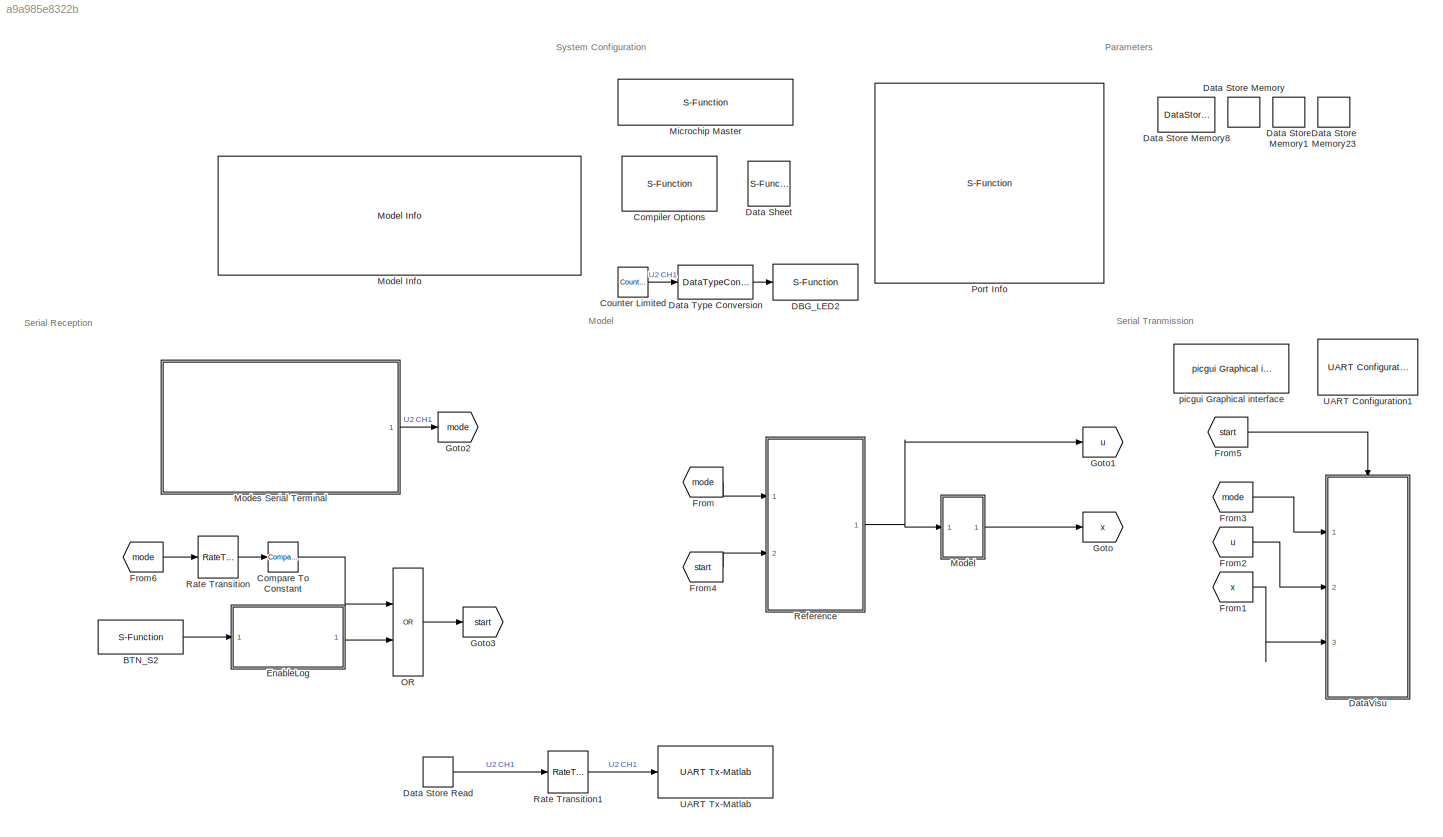
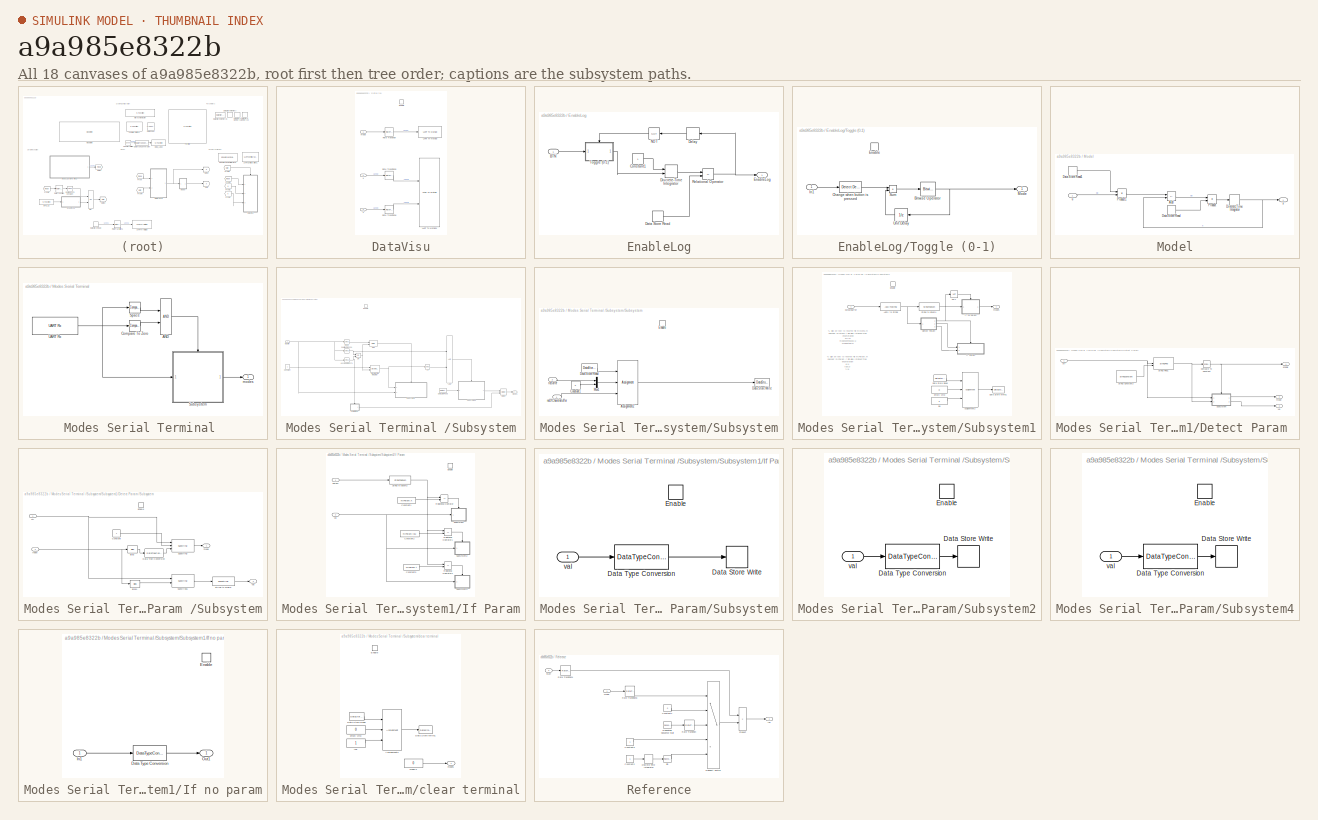
[diagram: thumbnail index - all 18 canvases of the model, root first then tree order]
MODEL slx_a9a985e8322b
KIND model
CONFIG AbsTol = auto
CONFIG EnableMultiTasking = on
CONFIG FixedStep = Ts
CONFIG InitFcn = % DC Voltage\nVDC = 24;\n\n\n% Intersective PMW \nVmax = VDC/2;\nImax = 4;\n\nTs = 1e-4;\n\n\n\n\n\n\n% pole paires\np = 4;\n\n% QEI\nlines = 4*1000;\neleclines = lines/p;\ninveleclines = 1/eleclines\ngainQEIspeed = 2*pi/Ts/lines\n\n\n\n% Electrical parameters\nR=0.656; L=0.35e-3; Phif=0.0066;\n% Mechanical parameters\nF=1.e-05; J=1e-05; C0 = 0.01;%10;%1;\n\n%% Current control synthesis\n% Desired Carateristc Equation\n%  1      ...<+1230ch>
CONFIG MaxStep = auto
CONFIG MinStep = auto
CONFIG RelTol = 1e-3
CONFIG SampleTimeConstraint = Unconstrained
CONFIG SolverName = FixedStepDiscrete
CONFIG StartTime = 0.0
CONFIG StopTime = 10.0
BLOCK [S-Function] BTN_S2
  Commented = on
  EnableBusSupport = off
  FunctionName = MCHP_Digital_Input
  OpenFcn = MCHP_Digital_Input_Callback(gcb,'OPEN');
  Parameters = SampleTime,[],MCHP_Digital_Input_Callback(gcb,'S_OUTPUT'),MCHP_OrderInOut(gcbh)
  Ports = [0, 1]
  PreSaveFcn = MCHP_Fun.PreSaveFcn_DynamicOptions(gcbh);
  SFcnIsStateOwnerBlock = off
  SFunctionDeploymentMode = off
BLOCK [Reference] Compare To Constant  REF=simulink/Logic and Bit
Operations/Compare
To Constant
  Commented = on
  Ports = [1, 1]
  SourceBlock = simulink/Logic and Bit\nOperations/Compare\nTo Constant
  SourceProductBaseCode = SL
  SourceType = Compare To Constant
BLOCK [S-Function] Compiler Options
  EnableBusSupport = off
  FunctionName = MCHP_EmptySFunction
  OpenFcn = MCHP_CompilerOptimisation_Callback(gcbh, 'OPEN');
  Ports = []
  PreSaveFcn = MCHP_Fun.PreSaveFcn_DynamicOptions(gcbh);
  Priority = 1
  SFcnIsStateOwnerBlock = off
  SFunctionDeploymentMode = off
BLOCK [Reference] Counter Limited  REF=simulink/Sources/Counter
Limited
  Ports = [0, 1]
  SourceBlock = simulink/Sources/Counter\nLimited
  SourceProductBaseCode = SL
  SourceType = Counter Limited
BLOCK [S-Function] DBG_LED2
  EnableBusSupport = off
  FunctionName = MCHP_Digital_Output_Write
  OpenFcn = MCHP_Digital_Output_Write_Callback(gcb,'OPEN');
  Parameters = SampleTime,MCHP_Digital_Output_Write_Callback(gcb,'S_INPUT'),MCHP_Digital_Output_Write_Callback(gcb,'S_OUTPUT'),MCHP_OrderInOut(gcbh)
  Ports = [1]
  PreSaveFcn = MCHP_Fun.PreSaveFcn_DynamicOptions(gcbh);
  SFcnIsStateOwnerBlock = off
  SFunctionDeploymentMode = off
BLOCK [S-Function] Data Sheet
  AttributesFormatString = %<cpy_MCHP_Id>
  CopyFcn = MCHP_Doc_Callback(gcb,'COPY');
  EnableBusSupport = off
  FunctionName = MCHP_EmptySFunction
  OpenFcn = MCHP_Doc_Callback(gcb,'OPEN');
  Ports = []
  SFcnIsStateOwnerBlock = off
  SFunctionDeploymentMode = off
BLOCK [DataStoreMemory] Data Store Memory
  DataStoreName = K
  InitialValue = 1
  OutDataTypeStr = single
  ReadBeforeWriteMsg = warning
  ShowAdditionalParam = off
  WriteAfterReadMsg = warning
  WriteAfterWriteMsg = warning
BLOCK [DataStoreMemory] Data Store Memory1
  DataStoreName = tau
  InitialValue = 0.1
  OutDataTypeStr = single
  ReadBeforeWriteMsg = warning
  ShowAdditionalParam = off
  WriteAfterReadMsg = warning
  WriteAfterWriteMsg = warning
BLOCK [DataStoreMemory] Data Store Memory23
  DataStoreName = t
  InitialValue = 1
  OutDataTypeStr = single
  ReadBeforeWriteMsg = warning
  ShowAdditionalParam = off
  WriteAfterReadMsg = warning
  WriteAfterWriteMsg = warning
BLOCK [DataStoreMemory] Data Store Memory8
  DataStoreName = msg_in
  InitialValue = zeros(1,50)
  ReadBeforeWriteMsg = warning
  ShowAdditionalParam = off
  WriteAfterReadMsg = warning
  WriteAfterWriteMsg = warning
BLOCK [DataStoreRead] Data Store Read
  DataStoreName = K
  Ports = [0, 1]
BLOCK [DataTypeConversion] Data Type Conversion
  OutDataTypeStr = boolean
  RndMeth = Floor
  SaturateOnIntegerOverflow = off
BLOCK [SubSystem] DataVisu
  Commented = on
  Ports = [3, 0, 1]
  RequestExecContextInheritance = off
BLOCK [EnablePort] DataVisu/Enable
  Ports = []
BLOCK [RateTransition] DataVisu/Rate Transition
BLOCK [RateTransition] DataVisu/Rate Transition5
BLOCK [RateTransition] DataVisu/Rate Transition6
BLOCK [Reference] DataVisu/UART Tx-Matlab  REF=MCHP_Blockset/BUS UART/UART Tx-Matlab
  Ports = [1]
  SourceBlock = MCHP_Blockset/BUS UART/UART Tx-Matlab
  SourceProductName = MPLAB Device Blocks for Simulink
  SourceType = Higl Level UART protocol
BLOCK [Reference] DataVisu/UART Tx-Matlab1  REF=MCHP_Blockset/BUS UART/UART Tx-Matlab
  Ports = [2]
  SourceBlock = MCHP_Blockset/BUS UART/UART Tx-Matlab
  SourceProductName = MPLAB Device Blocks for Simulink
  SourceType = Higl Level UART protocol
BLOCK [Inport] DataVisu/mode
BLOCK [Inport] DataVisu/u
  Port = 2
BLOCK [Inport] DataVisu/x
  Port = 3
BLOCK [SubSystem] EnableLog
  Commented = on
  Ports = [1, 1]
  RequestExecContextInheritance = off
BLOCK [Inport] EnableLog/BTN
BLOCK [Constant] EnableLog/Constant1
BLOCK [DataStoreRead] EnableLog/Data Store Read
  DataStoreName = t
  Ports = [0, 1]
  SampleTime = 0.1
BLOCK [Delay] EnableLog/Delay
  DelayLength = 1
  InputPortMap = u0
  Ports = [1, 1]
BLOCK [DiscreteIntegrator] EnableLog/Discrete-Time Integrator
  ExternalReset = rising
  ICPrevOutput = DiscIntNeverNeededParam
  ICPrevScaledInput = DiscIntNeverNeededParam
  InitialConditionSetting = Auto
  Ports = [2, 1]
  SampleTime = -1
BLOCK [Outport] EnableLog/EnableLog
BLOCK [Logic] EnableLog/NOT
  AllPortsSameDT = off
  IconShape = distinctive
  Operator = NOT
  OutDataTypeStr = boolean
  Ports = [1, 1]
BLOCK [RelationalOperator] EnableLog/Relational Operator
  InputSameDT = off
  Operator = <=
  OutDataTypeStr = boolean
  Ports = [2, 1]
  RndMeth = Simplest
BLOCK [SubSystem] EnableLog/Toggle (0-1)
  Ports = [1, 1, 1]
  RequestExecContextInheritance = off
BLOCK [Reference] EnableLog/Toggle (0-1)/Bitwise Operator  REF=simulink/Logic and Bit
Operations/Bitwise
Operator
  Ports = [1, 1]
  SourceBlock = simulink/Logic and Bit\nOperations/Bitwise\nOperator
  SourceProductBaseCode = SL
  SourceType = Bitwise Operator
BLOCK [Reference] EnableLog/Toggle (0-1)/Change when button is pressed  REF=simulink/Logic and Bit
Operations/Detect
Decrease
  Ports = [1, 1]
  SourceBlock = simulink/Logic and Bit\nOperations/Detect\nDecrease
  SourceProductBaseCode = SL
  SourceType = Detect Decrease
BLOCK [EnablePort] EnableLog/Toggle (0-1)/Enable
  Ports = []
  StatesWhenEnabling = reset
BLOCK [Inport] EnableLog/Toggle (0-1)/In1
BLOCK [Outport] EnableLog/Toggle (0-1)/Mode
  VectorParamsAs1DForOutWhenUnconnected = off
BLOCK [Sum] EnableLog/Toggle (0-1)/Sum
  AccumDataTypeStr = uint16
  IconShape = rectangular
  OutDataTypeStr = uint16
  Ports = [2, 1]
BLOCK [UnitDelay] EnableLog/Toggle (0-1)/Unit Delay
  HasFrameUpgradeWarning = on
  NameLocation = top
  SampleTime = -1
BLOCK [From] From
  Commented = on
  GotoTag = mode
BLOCK [From] From1
  Commented = on
  GotoTag = x
BLOCK [From] From2
  Commented = on
  GotoTag = u
BLOCK [From] From3
  Commented = on
  GotoTag = mode
BLOCK [From] From4
  Commented = on
  GotoTag = start
BLOCK [From] From5
  Commented = on
  GotoTag = start
  TagVisibility = global
BLOCK [From] From6
  Commented = on
  GotoTag = mode
BLOCK [Goto] Goto
  Commented = on
  GotoTag = x
BLOCK [Goto] Goto1
  Commented = on
  GotoTag = u
BLOCK [Goto] Goto2
  GotoTag = mode
BLOCK [Goto] Goto3
  Commented = on
  GotoTag = start
  TagVisibility = global
BLOCK [S-Function] Microchip Master
  EnableBusSupport = off
  FunctionName = MCHP_Master
  InitFcn = MCHP_Master_Callback(gcbh,'INIT');
  OpenFcn = MCHP_Master_Callback(gcbh,'OPEN');
  Ports = []
  PreSaveFcn = MCHP_Fun.PreSaveFcn_DynamicOptions(gcbh);
  Priority = 1
  SFcnIsStateOwnerBlock = off
  SFunctionDeploymentMode = off
BLOCK [SubSystem] Model
  Commented = on
  Ports = [1, 1]
  RequestExecContextInheritance = off
BLOCK [Reference] Model Info  REF=simulink/Model-Wide
Utilities/Model Info
  Ports = []
  SourceBlock = simulink/Model-Wide\nUtilities/Model Info
  SourceProductBaseCode = SL
  SourceType = CMBlock
BLOCK [Sum] Model/Add
  IconShape = rectangular
  Inputs = +-
  Ports = [2, 1]
BLOCK [DataStoreRead] Model/Data Store Read
  DataStoreName = tau
  Ports = [0, 1]
BLOCK [DataStoreRead] Model/Data Store Read1
  DataStoreName = K
  Ports = [0, 1]
BLOCK [DiscreteIntegrator] Model/Discrete-Time Integrator
  ICPrevOutput = DiscIntNeverNeededParam
  ICPrevScaledInput = DiscIntNeverNeededParam
  InitialConditionSetting = Auto
  LowerSaturationLimit = -100
  OutDataTypeStr = single
  Ports = [1, 1]
  SampleTime = 1e-4
  UpperSaturationLimit = 100
BLOCK [Product] Model/Product
  Inputs = */
  Ports = [2, 1]
BLOCK [Product] Model/Product1
  Ports = [2, 1]
BLOCK [Inport] Model/u
BLOCK [Outport] Model/x
BLOCK [SubSystem] Modes Serial Terminal 
  Ports = [0, 1]
  RequestExecContextInheritance = off
BLOCK [Logic] Modes Serial Terminal /AND
  AllPortsSameDT = off
  IconShape = distinctive
  OutDataTypeStr = boolean
  Ports = [2, 1]
BLOCK [Reference] Modes Serial Terminal /Compare To Zero  REF=simulink/Logic and Bit
Operations/Compare
To Zero
  Ports = [1, 1]
  SourceBlock = simulink/Logic and Bit\nOperations/Compare\nTo Zero
  SourceProductBaseCode = SL
  SourceType = Compare To Zero
BLOCK [Reference] Modes Serial Terminal /Space  REF=simulink/Logic and Bit
Operations/Compare
To Constant
  Ports = [1, 1]
  SourceBlock = simulink/Logic and Bit\nOperations/Compare\nTo Constant
  SourceProductBaseCode = SL
  SourceType = Compare To Constant
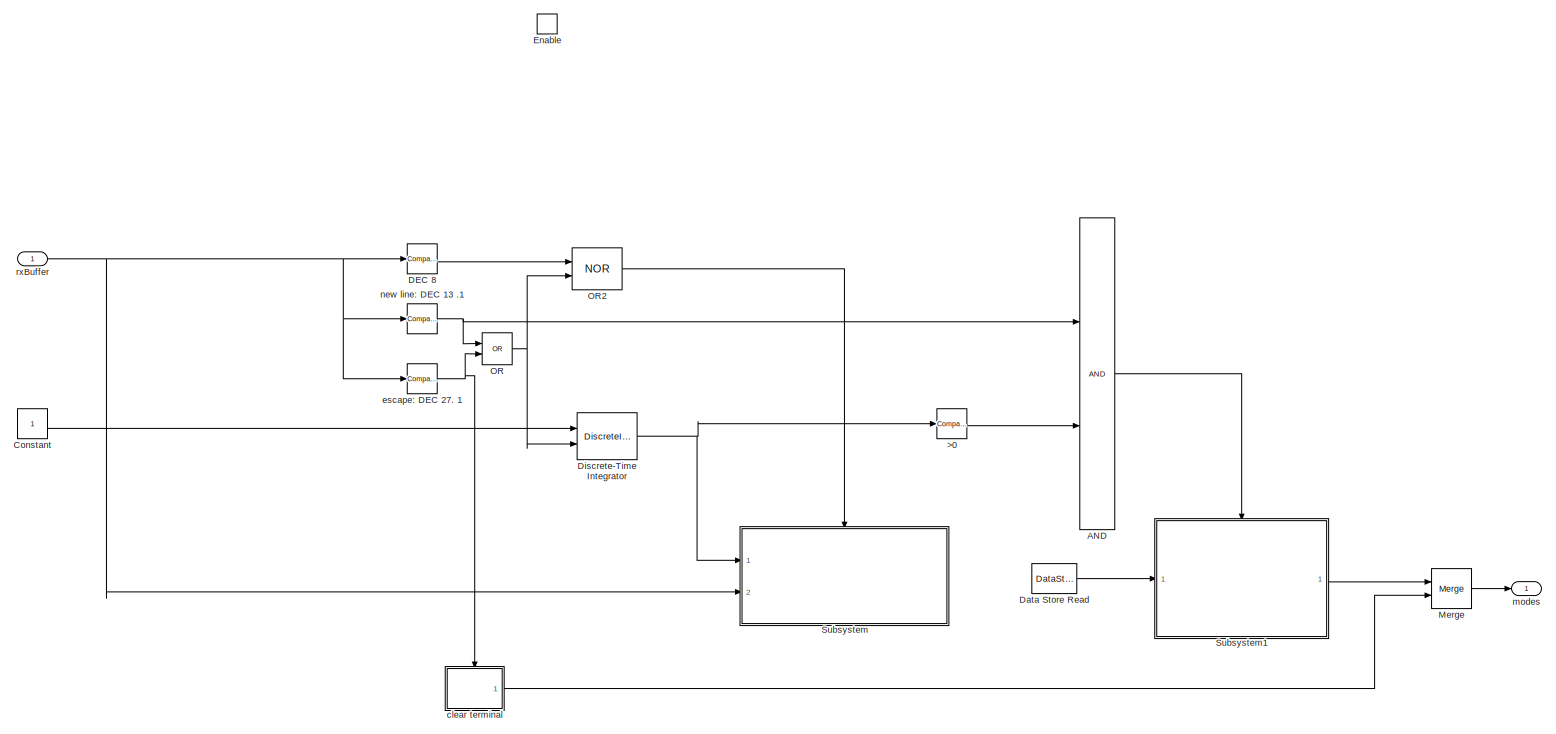
[diagram: Modes Serial Terminal /Subsystem - part 1/1, most of the canvas]
BLOCK [SubSystem] Modes Serial Terminal /Subsystem
  Ports = [1, 1, 1]
  RequestExecContextInheritance = off
BLOCK [Reference] Modes Serial Terminal /Subsystem/>0  REF=simulink/Logic and Bit
Operations/Compare
To Constant
  Ports = [1, 1]
  SourceBlock = simulink/Logic and Bit\nOperations/Compare\nTo Constant
  SourceProductBaseCode = SL
  SourceType = Compare To Constant
BLOCK [Logic] Modes Serial Terminal /Subsystem/AND
  AllPortsSameDT = off
  IconShape = distinctive
  OutDataTypeStr = boolean
  Ports = [2, 1]
BLOCK [Constant] Modes Serial Terminal /Subsystem/Constant
  OutDataTypeStr = uint16
  SampleTime = -1
BLOCK [Reference] Modes Serial Terminal /Subsystem/DEC 8  REF=simulink/Logic and Bit
Operations/Compare
To Constant
  Ports = [1, 1]
  SourceBlock = simulink/Logic and Bit\nOperations/Compare\nTo Constant
  SourceProductBaseCode = SL
  SourceType = Compare To Constant
BLOCK [DataStoreRead] Modes Serial Terminal /Subsystem/Data Store Read
  DataStoreName = msg_in
  Ports = [0, 1]
  SampleTime = .02
BLOCK [DiscreteIntegrator] Modes Serial Terminal /Subsystem/Discrete-Time Integrator
  ExternalReset = level
  ICPrevOutput = DiscIntNeverNeededParam
  ICPrevScaledInput = DiscIntNeverNeededParam
  InitialConditionSetting = Auto
  IntegratorMethod = Accumulation: Backward Euler
  OutDataTypeStr = uint16
  Ports = [2, 1]
  SampleTime = -1
  gainval = 1
BLOCK [EnablePort] Modes Serial Terminal /Subsystem/Enable
  Ports = []
BLOCK [Merge] Modes Serial Terminal /Subsystem/Merge
  Ports = [2, 1]
BLOCK [Logic] Modes Serial Terminal /Subsystem/OR
  AllPortsSameDT = off
  IconShape = distinctive
  Operator = OR
  OutDataTypeStr = boolean
  Ports = [2, 1]
BLOCK [Logic] Modes Serial Terminal /Subsystem/OR2
  AllPortsSameDT = off
  IconShape = distinctive
  Operator = NOR
  OutDataTypeStr = boolean
  Ports = [2, 1]
BLOCK [SubSystem] Modes Serial Terminal /Subsystem/Subsystem
  Ports = [2, 0, 1]
  RequestExecContextInheritance = off
BLOCK [Assignment] Modes Serial Terminal /Subsystem/Subsystem/Assignment2
  DiagnosticForDimensions = Warning
  IndexOptions = Starting index (port)
  Indices = 1
  OutputSizes = 1
  Ports = [3, 1]
BLOCK [Constant] Modes Serial Terminal /Subsystem/Subsystem/Constant1
  OutDataTypeStr = Inherit: Inherit via back propagation
  Value = 0
BLOCK [DataStoreRead] Modes Serial Terminal /Subsystem/Subsystem/Data Store Read
  DataStoreName = msg_in
  Ports = [0, 1]
BLOCK [DataStoreWrite] Modes Serial Terminal /Subsystem/Subsystem/Data Store Write
  DataStoreName = msg_in
  Ports = [1]
BLOCK [EnablePort] Modes Serial Terminal /Subsystem/Subsystem/Enable
  Ports = []
BLOCK [Mux] Modes Serial Terminal /Subsystem/Subsystem/Mux1
  DisplayOption = bar
  Inputs = 2
  Ports = [2, 1]
BLOCK [Inport] Modes Serial Terminal /Subsystem/Subsystem/noOfCharsInBuffer
BLOCK [Inport] Modes Serial Terminal /Subsystem/Subsystem/rxBuffer
  Port = 2
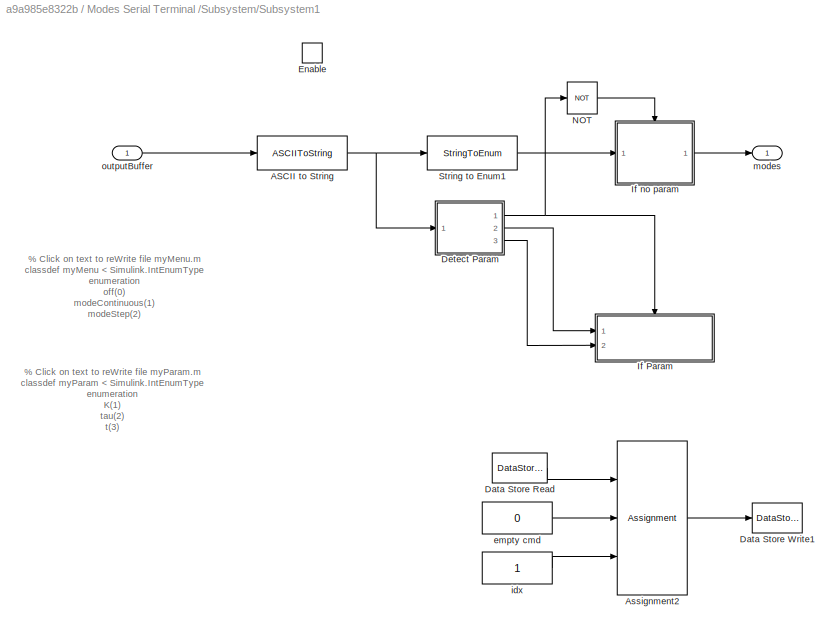
BLOCK [SubSystem] Modes Serial Terminal /Subsystem/Subsystem1
  Ports = [1, 1, 1]
  RequestExecContextInheritance = off
BLOCK [ASCIIToString] Modes Serial Terminal /Subsystem/Subsystem1/ASCII to String
BLOCK [Assignment] Modes Serial Terminal /Subsystem/Subsystem1/Assignment2
  DiagnosticForDimensions = Warning
  IndexOptions = Starting index (port)
  Indices = 1
  OutputSizes = 1
  Ports = [3, 1]
BLOCK [DataStoreRead] Modes Serial Terminal /Subsystem/Subsystem1/Data Store Read
  DataStoreName = msg_in
  Ports = [0, 1]
BLOCK [DataStoreWrite] Modes Serial Terminal /Subsystem/Subsystem1/Data Store Write1
  DataStoreName = msg_in
  Ports = [1]
BLOCK [SubSystem] Modes Serial Terminal /Subsystem/Subsystem1/Detect Param 
  Ports = [1, 3]
  RequestExecContextInheritance = off
BLOCK [Reference] Modes Serial Terminal /Subsystem/Subsystem1/Detect Param /Compare To Constant  REF=simulink/Logic and Bit
Operations/Compare
To Constant
  Ports = [1, 1]
  SourceBlock = simulink/Logic and Bit\nOperations/Compare\nTo Constant
  SourceProductBaseCode = SL
  SourceType = Compare To Constant
BLOCK [StringConstant] Modes Serial Terminal /Subsystem/Subsystem1/Detect Param /String Constant3
  String = "="
BLOCK [StringFind] Modes Serial Terminal /Subsystem/Subsystem1/Detect Param /String Find1
BLOCK [SubSystem] Modes Serial Terminal /Subsystem/Subsystem1/Detect Param /Subsystem
  Ports = [2, 2, 1]
  RequestExecContextInheritance = off
BLOCK [Bias] Modes Serial Terminal /Subsystem/Subsystem1/Detect Param /Subsystem/Bias
  Bias = -1
  SaturateOnIntegerOverflow = off
BLOCK [Bias] Modes Serial Terminal /Subsystem/Subsystem1/Detect Param /Subsystem/Bias1
  Bias = 1
  SaturateOnIntegerOverflow = off
BLOCK [Constant] Modes Serial Terminal /Subsystem/Subsystem1/Detect Param /Subsystem/Constant
  OutDataTypeStr = Inherit: Inherit via back propagation
BLOCK [DataTypeConversion] Modes Serial Terminal /Subsystem/Subsystem1/Detect Param /Subsystem/Data Type Conversion
  RndMeth = Floor
  SaturateOnIntegerOverflow = off
BLOCK [EnablePort] Modes Serial Terminal /Subsystem/Subsystem1/Detect Param /Subsystem/Enable
  Ports = []
BLOCK [ScanString] Modes Serial Terminal /Subsystem/Subsystem1/Detect Param /Subsystem/String to Single
  Format = "%f"
  Ports = [1, 1]
BLOCK [Substring] Modes Serial Terminal /Subsystem/Subsystem1/Detect Param /Subsystem/Substring
  Ports = [3, 1]
BLOCK [Substring] Modes Serial Terminal /Subsystem/Subsystem1/Detect Param /Subsystem/Substring1
  Ports = [2, 1]
  StringFromIdxToEnd = on
BLOCK [Inport] Modes Serial Terminal /Subsystem/Subsystem1/Detect Param /Subsystem/index
  Port = 2
BLOCK [Outport] Modes Serial Terminal /Subsystem/Subsystem1/Detect Param /Subsystem/mode
BLOCK [Inport] Modes Serial Terminal /Subsystem/Subsystem1/Detect Param /Subsystem/str
BLOCK [Outport] Modes Serial Terminal /Subsystem/Subsystem1/Detect Param /Subsystem/val
  Port = 2
BLOCK [Outport] Modes Serial Terminal /Subsystem/Subsystem1/Detect Param /enable
BLOCK [Outport] Modes Serial Terminal /Subsystem/Subsystem1/Detect Param /mode
  Port = 2
BLOCK [Inport] Modes Serial Terminal /Subsystem/Subsystem1/Detect Param /str
BLOCK [Outport] Modes Serial Terminal /Subsystem/Subsystem1/Detect Param /val
  Port = 3
BLOCK [EnablePort] Modes Serial Terminal /Subsystem/Subsystem1/Enable
  Ports = []
BLOCK [SubSystem] Modes Serial Terminal /Subsystem/Subsystem1/If Param
  Ports = [2, 0, 1]
  RequestExecContextInheritance = off
BLOCK [Constant] Modes Serial Terminal /Subsystem/Subsystem1/If Param/Constant1
  OutDataTypeStr = Enum: myParam
  Value = myParam.K
BLOCK [Constant] Modes Serial Terminal /Subsystem/Subsystem1/If Param/Constant2
  OutDataTypeStr = Enum: myParam
  Value = myParam.tau
BLOCK [Constant] Modes Serial Terminal /Subsystem/Subsystem1/If Param/Constant3
  OutDataTypeStr = Enum: myParam
  Value = myParam.t
BLOCK [EnablePort] Modes Serial Terminal /Subsystem/Subsystem1/If Param/Enable
  Ports = []
BLOCK [RelationalOperator] Modes Serial Terminal /Subsystem/Subsystem1/If Param/Relational Operator
  InputSameDT = off
  Operator = ==
  OutDataTypeStr = boolean
  Ports = [2, 1]
  RndMeth = Simplest
BLOCK [RelationalOperator] Modes Serial Terminal /Subsystem/Subsystem1/If Param/Relational Operator1
  InputSameDT = off
  Operator = ==
  OutDataTypeStr = boolean
  Ports = [2, 1]
  RndMeth = Simplest
BLOCK [RelationalOperator] Modes Serial Terminal /Subsystem/Subsystem1/If Param/Relational Operator2
  InputSameDT = off
  Operator = ==
  OutDataTypeStr = boolean
  Ports = [2, 1]
  RndMeth = Simplest
BLOCK [StringToEnum] Modes Serial Terminal /Subsystem/Subsystem1/If Param/String to Enum2
  OutDataTypeStr = Enum: myParam
BLOCK [SubSystem] Modes Serial Terminal /Subsystem/Subsystem1/If Param/Subsystem
  Ports = [1, 0, 1]
  RequestExecContextInheritance = off
BLOCK [DataStoreWrite] Modes Serial Terminal /Subsystem/Subsystem1/If Param/Subsystem/Data Store Write
  DataStoreName = K
  Ports = [1]
BLOCK [DataTypeConversion] Modes Serial Terminal /Subsystem/Subsystem1/If Param/Subsystem/Data Type Conversion
  OutDataTypeStr = single
  RndMeth = Floor
  SaturateOnIntegerOverflow = off
BLOCK [EnablePort] Modes Serial Terminal /Subsystem/Subsystem1/If Param/Subsystem/Enable
  Ports = []
BLOCK [Inport] Modes Serial Terminal /Subsystem/Subsystem1/If Param/Subsystem/val
BLOCK [SubSystem] Modes Serial Terminal /Subsystem/Subsystem1/If Param/Subsystem2
  Ports = [1, 0, 1]
  RequestExecContextInheritance = off
BLOCK [DataStoreWrite] Modes Serial Terminal /Subsystem/Subsystem1/If Param/Subsystem2/Data Store Write
  DataStoreName = tau
  Ports = [1]
BLOCK [DataTypeConversion] Modes Serial Terminal /Subsystem/Subsystem1/If Param/Subsystem2/Data Type Conversion
  OutDataTypeStr = single
  RndMeth = Floor
  SaturateOnIntegerOverflow = off
BLOCK [EnablePort] Modes Serial Terminal /Subsystem/Subsystem1/If Param/Subsystem2/Enable
  Ports = []
BLOCK [Inport] Modes Serial Terminal /Subsystem/Subsystem1/If Param/Subsystem2/val
BLOCK [SubSystem] Modes Serial Terminal /Subsystem/Subsystem1/If Param/Subsystem4
  Ports = [1, 0, 1]
  RequestExecContextInheritance = off
BLOCK [DataStoreWrite] Modes Serial Terminal /Subsystem/Subsystem1/If Param/Subsystem4/Data Store Write
  DataStoreName = t
  Ports = [1]
BLOCK [DataTypeConversion] Modes Serial Terminal /Subsystem/Subsystem1/If Param/Subsystem4/Data Type Conversion
  RndMeth = Floor
  SaturateOnIntegerOverflow = off
BLOCK [EnablePort] Modes Serial Terminal /Subsystem/Subsystem1/If Param/Subsystem4/Enable
  Ports = []
BLOCK [Inport] Modes Serial Terminal /Subsystem/Subsystem1/If Param/Subsystem4/val
BLOCK [Inport] Modes Serial Terminal /Subsystem/Subsystem1/If Param/param
BLOCK [Inport] Modes Serial Terminal /Subsystem/Subsystem1/If Param/val
  Port = 2
BLOCK [SubSystem] Modes Serial Terminal /Subsystem/Subsystem1/If no param
  Ports = [1, 1, 1]
  RequestExecContextInheritance = off
BLOCK [DataTypeConversion] Modes Serial Terminal /Subsystem/Subsystem1/If no param/Data Type Conversion
  OutDataTypeStr = uint16
  RndMeth = Floor
  SaturateOnIntegerOverflow = off
BLOCK [EnablePort] Modes Serial Terminal /Subsystem/Subsystem1/If no param/Enable
  Ports = []
BLOCK [Inport] Modes Serial Terminal /Subsystem/Subsystem1/If no param/In1
BLOCK [Outport] Modes Serial Terminal /Subsystem/Subsystem1/If no param/Out1
BLOCK [Logic] Modes Serial Terminal /Subsystem/Subsystem1/NOT
  AllPortsSameDT = off
  IconShape = distinctive
  Operator = NOT
  OutDataTypeStr = boolean
  Ports = [1, 1]
BLOCK [StringToEnum] Modes Serial Terminal /Subsystem/Subsystem1/String to Enum1
  OutDataTypeStr = Enum: myMenu
BLOCK [Constant] Modes Serial Terminal /Subsystem/Subsystem1/empty cmd
  OutDataTypeStr = uint8
  Value = 0
BLOCK [Constant] Modes Serial Terminal /Subsystem/Subsystem1/idx
  OutDataTypeStr = uint8
BLOCK [Outport] Modes Serial Terminal /Subsystem/Subsystem1/modes
BLOCK [Inport] Modes Serial Terminal /Subsystem/Subsystem1/outputBuffer
BLOCK [SubSystem] Modes Serial Terminal /Subsystem/clear terminal
  Ports = [0, 1, 1]
  RequestExecContextInheritance = off
BLOCK [Assignment] Modes Serial Terminal /Subsystem/clear terminal/Assignment2
  DiagnosticForDimensions = Warning
  IndexOptions = Starting index (port)
  Indices = 1
  OutputSizes = 1
  Ports = [3, 1]
BLOCK [DataStoreRead] Modes Serial Terminal /Subsystem/clear terminal/Data Store Read
  DataStoreName = msg_in
  Ports = [0, 1]
BLOCK [DataStoreWrite] Modes Serial Terminal /Subsystem/clear terminal/Data Store Write1
  DataStoreName = msg_in
  Ports = [1]
BLOCK [EnablePort] Modes Serial Terminal /Subsystem/clear terminal/Enable
  Ports = []
BLOCK [Constant] Modes Serial Terminal /Subsystem/clear terminal/empty cmd
  OutDataTypeStr = uint8
  Value = 0
BLOCK [Constant] Modes Serial Terminal /Subsystem/clear terminal/idx
  OutDataTypeStr = uint8
BLOCK [Constant] Modes Serial Terminal /Subsystem/clear terminal/mode 0
  OutDataTypeStr = uint16
  Value = 0
BLOCK [Outport] Modes Serial Terminal /Subsystem/clear terminal/modes
BLOCK [Reference] Modes Serial Terminal /Subsystem/escape: DEC 27. 1  REF=simulink/Logic and Bit
Operations/Compare
To Constant
  Ports = [1, 1]
  SourceBlock = simulink/Logic and Bit\nOperations/Compare\nTo Constant
  SourceProductBaseCode = SL
  SourceType = Compare To Constant
BLOCK [Outport] Modes Serial Terminal /Subsystem/modes
BLOCK [Reference] Modes Serial Terminal /Subsystem/new line: DEC 13 .1  REF=simulink/Logic and Bit
Operations/Compare
To Constant
  Ports = [1, 1]
  SourceBlock = simulink/Logic and Bit\nOperations/Compare\nTo Constant
  SourceProductBaseCode = SL
  SourceType = Compare To Constant
BLOCK [Inport] Modes Serial Terminal /Subsystem/rxBuffer
BLOCK [Reference] Modes Serial Terminal /UART Rx  REF=MCHP_Blockset/BUS UART/UART Rx
  Ports = [0, 1]
  SourceBlock = MCHP_Blockset/BUS UART/UART Rx
  SourceProductName = MPLAB Device Blocks for Simulink
  SourceType = UART Rx Input Driver
BLOCK [Outport] Modes Serial Terminal /modes
BLOCK [Logic] OR
  AllPortsSameDT = off
  Commented = on
  IconShape = distinctive
  Operator = OR
  OutDataTypeStr = boolean
  Ports = [2, 1]
BLOCK [S-Function] Port Info
  CopyFcn = MCHP_PortInfo_Callback(gcb,'COPY');
  EnableBusSupport = off
  FunctionName = MCHP_EmptySFunction
  OpenFcn = MCHP_PortInfo_Callback(gcb,'OPEN');
  Ports = []
  SFcnIsStateOwnerBlock = off
  SFunctionDeploymentMode = off
BLOCK [RateTransition] Rate Transition
  Commented = on
BLOCK [RateTransition] Rate Transition1
BLOCK [SubSystem] Reference
  Commented = on
  Ports = [2, 1]
  RequestExecContextInheritance = off
BLOCK [Constant] Reference/Constant1
  OutDataTypeStr = single
  Value = 0
BLOCK [Constant] Reference/Constant2
  OutDataTypeStr = single
BLOCK [Constant] Reference/Constant3
  OutDataTypeStr = single
BLOCK [DiscreteIntegrator] Reference/Discrete-Time Integrator
  ICPrevOutput = DiscIntNeverNeededParam
  ICPrevScaledInput = DiscIntNeverNeededParam
  InitialConditionSetting = Auto
  Ports = [1, 1]
  SampleTime = -1
BLOCK [MultiPortSwitch] Reference/Multiport Switch
  DataPortOrder = Zero-based contiguous
  InputSameDT = off
  Inputs = 4
  Ports = [5, 1]
  SaturateOnIntegerOverflow = off
  zeroidx = on
BLOCK [Product] Reference/Product
  Ports = [2, 1]
BLOCK [RateTransition] Reference/Rate Transition
BLOCK [RateTransition] Reference/Rate Transition3
BLOCK [RateTransition] Reference/Rate Transition4
BLOCK [Reference] Reference/Repeating Sequence Stair  REF=simulink/Sources/Repeating
Sequence
Stair
  Ports = [0, 1]
  SourceBlock = simulink/Sources/Repeating\nSequence\nStair
  SourceProductBaseCode = SL
  SourceType = Repeating Sequence Stair
BLOCK [Trigonometry] Reference/Sin
  Ports = [1, 1]
BLOCK [Inport] Reference/mode
BLOCK [Outport] Reference/ref
BLOCK [Inport] Reference/start
  Port = 2
BLOCK [Reference] UART Configuration1  REF=MCHP_Blockset/BUS UART/UART Configuration
  Ports = []
  SourceBlock = MCHP_Blockset/BUS UART/UART Configuration
  SourceProductName = MPLAB Device Blocks for Simulink
  SourceType = Configuration for UART peripheral
BLOCK [Reference] UART Tx-Matlab  REF=MCHP_Blockset/BUS UART/UART Tx-Matlab
  Ports = [1]
  SourceBlock = MCHP_Blockset/BUS UART/UART Tx-Matlab
  SourceProductName = MPLAB Device Blocks for Simulink
  SourceType = Higl Level UART protocol
BLOCK [Reference] picgui Graphical interface  REF=MCHP_Blockset/BUS UART/picgui
Graphical interface
  Ports = []
  SourceBlock = MCHP_Blockset/BUS UART/picgui\nGraphical interface
  SourceProductName = MPLAB Device Blocks for Simulink
ANNOTATION (root): Model
ANNOTATION (root): Parameters
ANNOTATION (root): Serial Reception
ANNOTATION (root): Serial Tranmission
ANNOTATION (root): System Configuration
ANNOTATION Modes Serial Terminal /Subsystem/Subsystem1: % Click on text to reWrite file myMenu.m classdef myMenu < Simulink.IntEnumType enumeration off(0) modeContinuous(1) modeStep(2) modeSin(3) end end
ANNOTATION Modes Serial Terminal /Subsystem/Subsystem1: % Click on text to reWrite file myParam.m classdef myParam < Simulink.IntEnumType enumeration K(1) tau(2) t(3) end end
LINE BTN_S2:1 -> EnableLog:1
LINE Compare To Constant:1 -> OR:1
LINE Counter Limited:1 -> Data Type Conversion:1
LINE Data Store Read:1 -> Rate Transition1:1
LINE Data Type Conversion:1 -> DBG_LED2:1
LINE DataVisu/Rate Transition5:1 -> DataVisu/UART Tx-Matlab1:1
LINE DataVisu/Rate Transition6:1 -> DataVisu/UART Tx-Matlab1:2
LINE DataVisu/Rate Transition:1 -> DataVisu/UART Tx-Matlab:1
LINE DataVisu/mode:1 -> DataVisu/Rate Transition:1
LINE DataVisu/u:1 -> DataVisu/Rate Transition5:1
LINE DataVisu/x:1 -> DataVisu/Rate Transition6:1
LINE EnableLog/BTN:1 -> EnableLog/Toggle (0-1):1
LINE EnableLog/Constant1:1 -> EnableLog/Discrete-Time Integrator:1
LINE EnableLog/Data Store Read:1 -> EnableLog/Relational Operator:2
LINE EnableLog/Delay:1 -> EnableLog/NOT:1
LINE EnableLog/Discrete-Time Integrator:1 -> EnableLog/Relational Operator:1
LINE EnableLog/NOT:1 -> EnableLog/Toggle (0-1):enable
NET EnableLog/Relational Operator:1 -> EnableLog/Delay:1, EnableLog/EnableLog:1
NET EnableLog/Toggle (0-1)/Bitwise Operator:1 -> EnableLog/Toggle (0-1)/Mode:1, EnableLog/Toggle (0-1)/Unit Delay:1
LINE EnableLog/Toggle (0-1)/Change when button is pressed:1 -> EnableLog/Toggle (0-1)/Sum:1
LINE EnableLog/Toggle (0-1)/In1:1 -> EnableLog/Toggle (0-1)/Change when button is pressed:1
LINE EnableLog/Toggle (0-1)/Sum:1 -> EnableLog/Toggle (0-1)/Bitwise Operator:1
LINE EnableLog/Toggle (0-1)/Unit Delay:1 -> EnableLog/Toggle (0-1)/Sum:2
LINE EnableLog/Toggle (0-1):1 -> EnableLog/Discrete-Time Integrator:2
LINE EnableLog:1 -> OR:2
LINE From1:1 -> DataVisu:3
LINE From2:1 -> DataVisu:2
LINE From3:1 -> DataVisu:1
LINE From4:1 -> Reference:2
LINE From5:1 -> DataVisu:enable
LINE From6:1 -> Rate Transition:1
LINE From:1 -> Reference:1
LINE Model/Add:1 -> Model/Product:1
LINE Model/Data Store Read1:1 -> Model/Product1:1
LINE Model/Data Store Read:1 -> Model/Product:2
NET Model/Discrete-Time Integrator:1 -> Model/Add:2, Model/x:1
LINE Model/Product1:1 -> Model/Add:1
LINE Model/Product:1 -> Model/Discrete-Time Integrator:1
LINE Model/u:1 -> Model/Product1:2
LINE Model:1 -> Goto:1
LINE Modes Serial Terminal /AND:1 -> Modes Serial Terminal /Subsystem:enable
LINE Modes Serial Terminal /Compare To Zero:1 -> Modes Serial Terminal /AND:2
LINE Modes Serial Terminal /Space:1 -> Modes Serial Terminal /AND:1
LINE Modes Serial Terminal /Subsystem/>0:1 -> Modes Serial Terminal /Subsystem/AND:2
LINE Modes Serial Terminal /Subsystem/AND:1 -> Modes Serial Terminal /Subsystem/Subsystem1:enable
LINE Modes Serial Terminal /Subsystem/Constant:1 -> Modes Serial Terminal /Subsystem/Discrete-Time Integrator:1
LINE Modes Serial Terminal /Subsystem/DEC 8:1 -> Modes Serial Terminal /Subsystem/OR2:1
LINE Modes Serial Terminal /Subsystem/Data Store Read:1 -> Modes Serial Terminal /Subsystem/Subsystem1:1
NET Modes Serial Terminal /Subsystem/Discrete-Time Integrator:1 -> Modes Serial Terminal /Subsystem/>0:1, Modes Serial Terminal /Subsystem/Subsystem:1
LINE Modes Serial Terminal /Subsystem/Merge:1 -> Modes Serial Terminal /Subsystem/modes:1
LINE Modes Serial Terminal /Subsystem/OR2:1 -> Modes Serial Terminal /Subsystem/Subsystem:enable
NET Modes Serial Terminal /Subsystem/OR:1 -> Modes Serial Terminal /Subsystem/Discrete-Time Integrator:2, Modes Serial Terminal /Subsystem/OR2:2
LINE Modes Serial Terminal /Subsystem/Subsystem/Assignment2:1 -> Modes Serial Terminal /Subsystem/Subsystem/Data Store Write:1
LINE Modes Serial Terminal /Subsystem/Subsystem/Constant1:1 -> Modes Serial Terminal /Subsystem/Subsystem/Mux1:2
LINE Modes Serial Terminal /Subsystem/Subsystem/Data Store Read:1 -> Modes Serial Terminal /Subsystem/Subsystem/Assignment2:1
LINE Modes Serial Terminal /Subsystem/Subsystem/Mux1:1 -> Modes Serial Terminal /Subsystem/Subsystem/Assignment2:2
LINE Modes Serial Terminal /Subsystem/Subsystem/noOfCharsInBuffer:1 -> Modes Serial Terminal /Subsystem/Subsystem/Assignment2:3
LINE Modes Serial Terminal /Subsystem/Subsystem/rxBuffer:1 -> Modes Serial Terminal /Subsystem/Subsystem/Mux1:1
NET Modes Serial Terminal /Subsystem/Subsystem1/ASCII to String:1 -> Modes Serial Terminal /Subsystem/Subsystem1/Detect Param :1, Modes Serial Terminal /Subsystem/Subsystem1/String to Enum1:1
LINE Modes Serial Terminal /Subsystem/Subsystem1/Assignment2:1 -> Modes Serial Terminal /Subsystem/Subsystem1/Data Store Write1:1
LINE Modes Serial Terminal /Subsystem/Subsystem1/Data Store Read:1 -> Modes Serial Terminal /Subsystem/Subsystem1/Assignment2:1
NET Modes Serial Terminal /Subsystem/Subsystem1/Detect Param /Compare To Constant:1 -> Modes Serial Terminal /Subsystem/Subsystem1/Detect Param /Subsystem:enable, Modes Serial Terminal /Subsystem/Subsystem1/Detect Param /enable:1
LINE Modes Serial Terminal /Subsystem/Subsystem1/Detect Param /String Constant3:1 -> Modes Serial Terminal /Subsystem/Subsystem1/Detect Param /String Find1:2
NET Modes Serial Terminal /Subsystem/Subsystem1/Detect Param /String Find1:1 -> Modes Serial Terminal /Subsystem/Subsystem1/Detect Param /Compare To Constant:1, Modes Serial Terminal /Subsystem/Subsystem1/Detect Param /Subsystem:2
LINE Modes Serial Terminal /Subsystem/Subsystem1/Detect Param /Subsystem/Bias1:1 -> Modes Serial Terminal /Subsystem/Subsystem1/Detect Param /Subsystem/Substring1:2
LINE Modes Serial Terminal /Subsystem/Subsystem1/Detect Param /Subsystem/Bias:1 -> Modes Serial Terminal /Subsystem/Subsystem1/Detect Param /Subsystem/Data Type Conversion:1
LINE Modes Serial Terminal /Subsystem/Subsystem1/Detect Param /Subsystem/Constant:1 -> Modes Serial Terminal /Subsystem/Subsystem1/Detect Param /Subsystem/Substring:2
LINE Modes Serial Terminal /Subsystem/Subsystem1/Detect Param /Subsystem/Data Type Conversion:1 -> Modes Serial Terminal /Subsystem/Subsystem1/Detect Param /Subsystem/Substring:3
LINE Modes Serial Terminal /Subsystem/Subsystem1/Detect Param /Subsystem/String to Single:1 -> Modes Serial Terminal /Subsystem/Subsystem1/Detect Param /Subsystem/val:1
LINE Modes Serial Terminal /Subsystem/Subsystem1/Detect Param /Subsystem/Substring1:1 -> Modes Serial Terminal /Subsystem/Subsystem1/Detect Param /Subsystem/String to Single:1
LINE Modes Serial Terminal /Subsystem/Subsystem1/Detect Param /Subsystem/Substring:1 -> Modes Serial Terminal /Subsystem/Subsystem1/Detect Param /Subsystem/mode:1
NET Modes Serial Terminal /Subsystem/Subsystem1/Detect Param /Subsystem/index:1 -> Modes Serial Terminal /Subsystem/Subsystem1/Detect Param /Subsystem/Bias1:1, Modes Serial Terminal /Subsystem/Subsystem1/Detect Param /Subsystem/Bias:1
NET Modes Serial Terminal /Subsystem/Subsystem1/Detect Param /Subsystem/str:1 -> Modes Serial Terminal /Subsystem/Subsystem1/Detect Param /Subsystem/Substring1:1, Modes Serial Terminal /Subsystem/Subsystem1/Detect Param /Subsystem/Substring:1
LINE Modes Serial Terminal /Subsystem/Subsystem1/Detect Param /Subsystem:1 -> Modes Serial Terminal /Subsystem/Subsystem1/Detect Param /mode:1
LINE Modes Serial Terminal /Subsystem/Subsystem1/Detect Param /Subsystem:2 -> Modes Serial Terminal /Subsystem/Subsystem1/Detect Param /val:1
NET Modes Serial Terminal /Subsystem/Subsystem1/Detect Param /str:1 -> Modes Serial Terminal /Subsystem/Subsystem1/Detect Param /String Find1:1, Modes Serial Terminal /Subsystem/Subsystem1/Detect Param /Subsystem:1
NET Modes Serial Terminal /Subsystem/Subsystem1/Detect Param :1 -> Modes Serial Terminal /Subsystem/Subsystem1/If Param:enable, Modes Serial Terminal /Subsystem/Subsystem1/NOT:1
LINE Modes Serial Terminal /Subsystem/Subsystem1/Detect Param :2 -> Modes Serial Terminal /Subsystem/Subsystem1/If Param:1
LINE Modes Serial Terminal /Subsystem/Subsystem1/Detect Param :3 -> Modes Serial Terminal /Subsystem/Subsystem1/If Param:2
LINE Modes Serial Terminal /Subsystem/Subsystem1/If Param/Constant1:1 -> Modes Serial Terminal /Subsystem/Subsystem1/If Param/Relational Operator:2
LINE Modes Serial Terminal /Subsystem/Subsystem1/If Param/Constant2:1 -> Modes Serial Terminal /Subsystem/Subsystem1/If Param/Relational Operator1:2
LINE Modes Serial Terminal /Subsystem/Subsystem1/If Param/Constant3:1 -> Modes Serial Terminal /Subsystem/Subsystem1/If Param/Relational Operator2:2
LINE Modes Serial Terminal /Subsystem/Subsystem1/If Param/Relational Operator1:1 -> Modes Serial Terminal /Subsystem/Subsystem1/If Param/Subsystem2:enable
LINE Modes Serial Terminal /Subsystem/Subsystem1/If Param/Relational Operator2:1 -> Modes Serial Terminal /Subsystem/Subsystem1/If Param/Subsystem4:enable
LINE Modes Serial Terminal /Subsystem/Subsystem1/If Param/Relational Operator:1 -> Modes Serial Terminal /Subsystem/Subsystem1/If Param/Subsystem:enable
NET Modes Serial Terminal /Subsystem/Subsystem1/If Param/String to Enum2:1 -> Modes Serial Terminal /Subsystem/Subsystem1/If Param/Relational Operator1:1, Modes Serial Terminal /Subsystem/Subsystem1/If Param/Relational Operator2:1, Modes Serial Terminal /Subsystem/Subsystem1/If Param/Relational Operator:1
LINE Modes Serial Terminal /Subsystem/Subsystem1/If Param/Subsystem/Data Type Conversion:1 -> Modes Serial Terminal /Subsystem/Subsystem1/If Param/Subsystem/Data Store Write:1
LINE Modes Serial Terminal /Subsystem/Subsystem1/If Param/Subsystem/val:1 -> Modes Serial Terminal /Subsystem/Subsystem1/If Param/Subsystem/Data Type Conversion:1
LINE Modes Serial Terminal /Subsystem/Subsystem1/If Param/Subsystem2/Data Type Conversion:1 -> Modes Serial Terminal /Subsystem/Subsystem1/If Param/Subsystem2/Data Store Write:1
LINE Modes Serial Terminal /Subsystem/Subsystem1/If Param/Subsystem2/val:1 -> Modes Serial Terminal /Subsystem/Subsystem1/If Param/Subsystem2/Data Type Conversion:1
LINE Modes Serial Terminal /Subsystem/Subsystem1/If Param/Subsystem4/Data Type Conversion:1 -> Modes Serial Terminal /Subsystem/Subsystem1/If Param/Subsystem4/Data Store Write:1
LINE Modes Serial Terminal /Subsystem/Subsystem1/If Param/Subsystem4/val:1 -> Modes Serial Terminal /Subsystem/Subsystem1/If Param/Subsystem4/Data Type Conversion:1
LINE Modes Serial Terminal /Subsystem/Subsystem1/If Param/param:1 -> Modes Serial Terminal /Subsystem/Subsystem1/If Param/String to Enum2:1
NET Modes Serial Terminal /Subsystem/Subsystem1/If Param/val:1 -> Modes Serial Terminal /Subsystem/Subsystem1/If Param/Subsystem2:1, Modes Serial Terminal /Subsystem/Subsystem1/If Param/Subsystem4:1, Modes Serial Terminal /Subsystem/Subsystem1/If Param/Subsystem:1
LINE Modes Serial Terminal /Subsystem/Subsystem1/If no param/Data Type Conversion:1 -> Modes Serial Terminal /Subsystem/Subsystem1/If no param/Out1:1
LINE Modes Serial Terminal /Subsystem/Subsystem1/If no param/In1:1 -> Modes Serial Terminal /Subsystem/Subsystem1/If no param/Data Type Conversion:1
LINE Modes Serial Terminal /Subsystem/Subsystem1/If no param:1 -> Modes Serial Terminal /Subsystem/Subsystem1/modes:1
LINE Modes Serial Terminal /Subsystem/Subsystem1/NOT:1 -> Modes Serial Terminal /Subsystem/Subsystem1/If no param:enable
LINE Modes Serial Terminal /Subsystem/Subsystem1/String to Enum1:1 -> Modes Serial Terminal /Subsystem/Subsystem1/If no param:1
LINE Modes Serial Terminal /Subsystem/Subsystem1/empty cmd:1 -> Modes Serial Terminal /Subsystem/Subsystem1/Assignment2:2
LINE Modes Serial Terminal /Subsystem/Subsystem1/idx:1 -> Modes Serial Terminal /Subsystem/Subsystem1/Assignment2:3
LINE Modes Serial Terminal /Subsystem/Subsystem1/outputBuffer:1 -> Modes Serial Terminal /Subsystem/Subsystem1/ASCII to String:1
LINE Modes Serial Terminal /Subsystem/Subsystem1:1 -> Modes Serial Terminal /Subsystem/Merge:1
LINE Modes Serial Terminal /Subsystem/clear terminal/Assignment2:1 -> Modes Serial Terminal /Subsystem/clear terminal/Data Store Write1:1
LINE Modes Serial Terminal /Subsystem/clear terminal/Data Store Read:1 -> Modes Serial Terminal /Subsystem/clear terminal/Assignment2:1
LINE Modes Serial Terminal /Subsystem/clear terminal/empty cmd:1 -> Modes Serial Terminal /Subsystem/clear terminal/Assignment2:2
LINE Modes Serial Terminal /Subsystem/clear terminal/idx:1 -> Modes Serial Terminal /Subsystem/clear terminal/Assignment2:3
LINE Modes Serial Terminal /Subsystem/clear terminal/mode 0:1 -> Modes Serial Terminal /Subsystem/clear terminal/modes:1
LINE Modes Serial Terminal /Subsystem/clear terminal:1 -> Modes Serial Terminal /Subsystem/Merge:2
NET Modes Serial Terminal /Subsystem/escape: DEC 27. 1:1 -> Modes Serial Terminal /Subsystem/OR:2, Modes Serial Terminal /Subsystem/clear terminal:enable
NET Modes Serial Terminal /Subsystem/new line: DEC 13 .1:1 -> Modes Serial Terminal /Subsystem/AND:1, Modes Serial Terminal /Subsystem/OR:1
NET Modes Serial Terminal /Subsystem/rxBuffer:1 -> Modes Serial Terminal /Subsystem/DEC 8:1, Modes Serial Terminal /Subsystem/Subsystem:2, Modes Serial Terminal /Subsystem/escape: DEC 27. 1:1, Modes Serial Terminal /Subsystem/new line: DEC 13 .1:1
LINE Modes Serial Terminal /Subsystem:1 -> Modes Serial Terminal /modes:1
NET Modes Serial Terminal /UART Rx:1 -> Modes Serial Terminal /Compare To Zero:1, Modes Serial Terminal /Space:1, Modes Serial Terminal /Subsystem:1
LINE Modes Serial Terminal :1 -> Goto2:1
LINE OR:1 -> Goto3:1
LINE Rate Transition1:1 -> UART Tx-Matlab:1
LINE Rate Transition:1 -> Compare To Constant:1
LINE Reference/Constant1:1 -> Reference/Multiport Switch:2
LINE Reference/Constant2:1 -> Reference/Discrete-Time Integrator:1
LINE Reference/Constant3:1 -> Reference/Multiport Switch:4
LINE Reference/Discrete-Time Integrator:1 -> Reference/Sin:1
LINE Reference/Multiport Switch:1 -> Reference/Product:2
LINE Reference/Product:1 -> Reference/ref:1
LINE Reference/Rate Transition3:1 -> Reference/Multiport Switch:1
LINE Reference/Rate Transition4:1 -> Reference/Product:1
LINE Reference/Rate Transition:1 -> Reference/Multiport Switch:3
LINE Reference/Repeating Sequence Stair:1 -> Reference/Rate Transition:1
LINE Reference/Sin:1 -> Reference/Multiport Switch:5
LINE Reference/mode:1 -> Reference/Rate Transition3:1
LINE Reference/start:1 -> Reference/Rate Transition4:1
NET Reference:1 -> Goto1:1, Model:1
note: NET lines group one-source signal fan-out (src -> all destinations, sorted); 1:1 wires keep LINE
